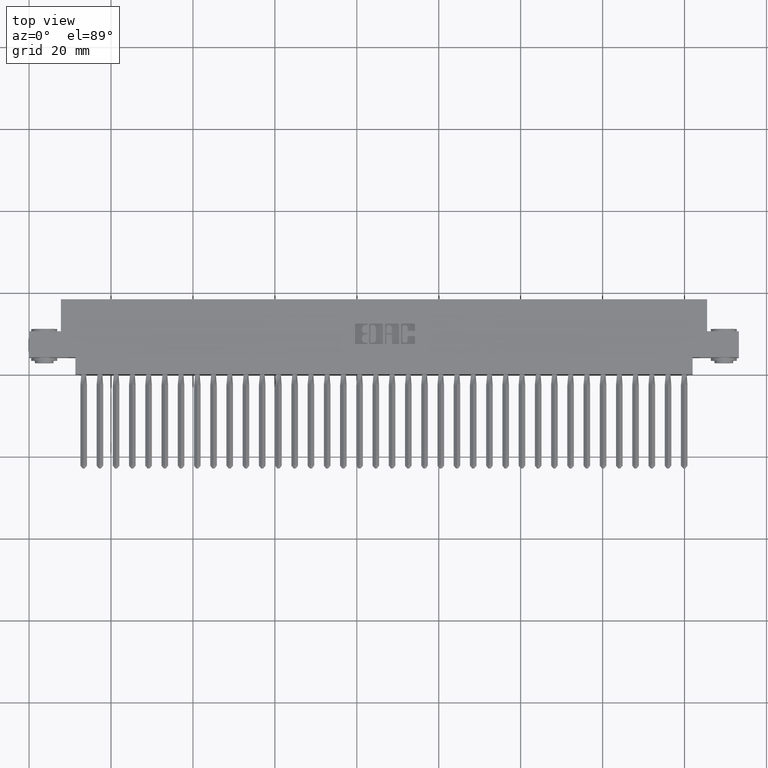
[diagram: clean part render]
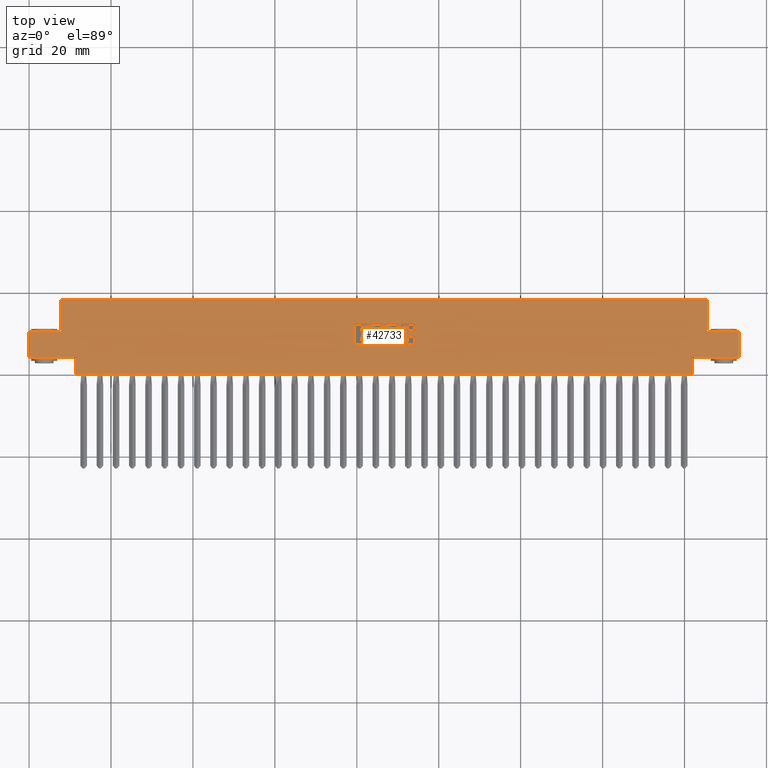
[diagram: same view with one face highlighted and labeled with its STEP entity id]
A machine part, top view. The second image highlights one B-rep face of the part: STEP entity #42733.
In plain terms, the highlighted planar face has unit normal (0, 0, -1).
Its self-contained STEP definition (entity closure, byte-faithful):
#108 = CARTESIAN_POINT ( 'NONE',  ( 0.0000000000000000000, 0.3918709691426839900, 0.0000000000000000000 ) ) ;
#151 = CARTESIAN_POINT ( 'NONE',  ( 0.3050000000000000500, 0.4129999999999999200, 0.0000000000000000000 ) ) ;
#179 = DIRECTION ( 'NONE',  ( -1.000000000000000000, -0.0000000000000000000, 9.653824462675984600E-015 ) ) ;
#205 = VECTOR ( 'NONE', #11000, 39.37007874015748100 ) ;
#277 = EDGE_CURVE ( 'NONE', #12188, #6458, #23362, .T. ) ;
#514 = CARTESIAN_POINT ( 'NONE',  ( -0.0000000000000000000, 0.3781290308573569400, 0.0000000000000000000 ) ) ;
#558 = ORIENTED_EDGE ( 'NONE', *, *, #43621, .T. ) ;
#575 = VECTOR ( 'NONE', #4192, 39.37007874015748100 ) ;
#577 = ORIENTED_EDGE ( 'NONE', *, *, #13629, .F. ) ;
#840 = VERTEX_POINT ( 'NONE', #48975 ) ;
#975 = ORIENTED_EDGE ( 'NONE', *, *, #43803, .T. ) ;
#1020 = CARTESIAN_POINT ( 'NONE',  ( 3.555044960240806100, 0.0000000000000000000, 0.0000000000000000000 ) ) ;
#1064 = VECTOR ( 'NONE', #5942, 39.37007874015748100 ) ;
#1189 = EDGE_CURVE ( 'NONE', #6458, #16159, #33452, .T. ) ;
#1422 = LINE ( 'NONE', #52358, #44791 ) ;
#1459 = ORIENTED_EDGE ( 'NONE', *, *, #15980, .F. ) ;
#1526 = DIRECTION ( 'NONE',  ( 1.000000000000000000, 0.0000000000000000000, 0.0000000000000000000 ) ) ;
#1657 = CARTESIAN_POINT ( 'NONE',  ( 2.731847993664263200E-016, 0.1630000000000000100, 3.951581205970576600E-015 ) ) ;
#1662 = EDGE_CURVE ( 'NONE', #28691, #37596, #54472, .T. ) ;
#1676 = EDGE_CURVE ( 'NONE', #19581, #40122, #10395, .T. ) ;
#1716 = CARTESIAN_POINT ( 'NONE',  ( -0.0000000000000000000, 0.2868432979619833200, 0.0000000000000000000 ) ) ;
#1942 = DIRECTION ( 'NONE',  ( -0.0000000000000000000, 0.0000000000000000000, 1.000000000000000000 ) ) ;
#1969 = CIRCLE ( 'NONE', #33940, 0.009815670203805798900 ) ;
#2193 = DIRECTION ( 'NONE',  ( -0.0000000000000000000, -1.000000000000000000, -0.0000000000000000000 ) ) ;
#2234 = VECTOR ( 'NONE', #42038, 39.37007874015748100 ) ;
#2276 = DIRECTION ( 'NONE',  ( 1.000000000000000000, 0.0000000000000000000, 0.0000000000000000000 ) ) ;
#2303 = ORIENTED_EDGE ( 'NONE', *, *, #3434, .T. ) ;
#2402 = CARTESIAN_POINT ( 'NONE',  ( 3.251004575677999500, 0.4762857328953863900, 0.0000000000000000000 ) ) ;
#2575 = LINE ( 'NONE', #4073, #50717 ) ;
#2872 = CARTESIAN_POINT ( 'NONE',  ( 6.821999999999999200, 0.1630000000000000100, 0.0000000000000000000 ) ) ;
#3030 = EDGE_CURVE ( 'NONE', #33369, #46322, #20392, .T. ) ;
#3061 = CARTESIAN_POINT ( 'NONE',  ( 3.426459680570987000, 0.2937142671046481000, 0.0000000000000000000 ) ) ;
#3110 = EDGE_CURVE ( 'NONE', #12875, #40179, #29182, .T. ) ;
#3130 = CARTESIAN_POINT ( 'NONE',  ( 3.199226915352927600, 0.3467188862052006900, 0.0000000000000000000 ) ) ;
#3199 = DIRECTION ( 'NONE',  ( 1.000000000000000000, 0.0000000000000000000, 0.0000000000000000000 ) ) ;
#3217 = CARTESIAN_POINT ( 'NONE',  ( 3.585964321382818300, 0.0000000000000000000, 0.0000000000000000000 ) ) ;
#3277 = CIRCLE ( 'NONE', #33894, 0.02625691779517995400 ) ;
#3434 = EDGE_CURVE ( 'NONE', #36346, #20296, #27128, .T. ) ;
#3475 = CIRCLE ( 'NONE', #9593, 0.009815670203841313900 ) ;
#3480 = CARTESIAN_POINT ( 'NONE',  ( 0.3050000000000000500, 0.4129999999999999200, 0.0000000000000000000 ) ) ;
#3498 = CARTESIAN_POINT ( 'NONE',  ( 3.199226915352927600, 0.3319953808994904900, 0.0000000000000000000 ) ) ;
#3530 = VECTOR ( 'NONE', #43928, 39.37007874015748100 ) ;
#3657 = AXIS2_PLACEMENT_3D ( 'NONE', #22508, #30832, #48677 ) ;
#3666 = CARTESIAN_POINT ( 'NONE',  ( 3.244133606535310100, 0.3918709691426839900, 0.0000000000000000000 ) ) ;
#3795 = LINE ( 'NONE', #49738, #50561 ) ;
#3833 = AXIS2_PLACEMENT_3D ( 'NONE', #15624, #41987, #46552 ) ;
#3944 = ORIENTED_EDGE ( 'NONE', *, *, #19993, .F. ) ;
#4004 = CARTESIAN_POINT ( 'NONE',  ( 3.429404381632127100, 0.4733410318342102200, 0.0000000000000000000 ) ) ;
#4014 = VECTOR ( 'NONE', #31353, 39.37007874015748100 ) ;
#4048 = VECTOR ( 'NONE', #37574, 39.37007874015748100 ) ;
#4073 = CARTESIAN_POINT ( 'NONE',  ( 0.0000000000000000000, 0.3663502266127576800, 0.0000000000000000000 ) ) ;
#4166 = LINE ( 'NONE', #52907, #53625 ) ;
#4192 = DIRECTION ( 'NONE',  ( 0.0000000000000000000, 1.000000000000000000, -0.0000000000000000000 ) ) ;
#4248 = VERTEX_POINT ( 'NONE', #5594 ) ;
#4336 = ORIENTED_EDGE ( 'NONE', *, *, #11096, .F. ) ;
#4615 = CARTESIAN_POINT ( 'NONE',  ( 3.555044960240806100, 0.4733410318342011200, 0.0000000000000000000 ) ) ;
#4689 = EDGE_CURVE ( 'NONE', #25783, #34005, #2575, .T. ) ;
#5058 = VECTOR ( 'NONE', #53649, 39.37007874015748100 ) ;
#5163 = DIRECTION ( 'NONE',  ( 0.0000000000000000000, -1.000000000000000000, 0.0000000000000000000 ) ) ;
#5398 = CARTESIAN_POINT ( 'NONE',  ( 0.0000000000000000000, 0.7199999999999999700, 0.0000000000000000000 ) ) ;
#5512 = CARTESIAN_POINT ( 'NONE',  ( 3.244133606415414000, 0.2868432979619858200, 0.0000000000000000000 ) ) ;
#5553 = VECTOR ( 'NONE', #41247, 39.37007874015748100 ) ;
#5562 = CARTESIAN_POINT ( 'NONE',  ( 0.0000000000000000000, 0.4129999999999999200, 0.0000000000000000000 ) ) ;
#5565 = CARTESIAN_POINT ( 'NONE',  ( 3.638478156973165700, 0.4237718973050453300, 0.0000000000000000000 ) ) ;
#5594 = CARTESIAN_POINT ( 'NONE',  ( 3.130026440416115100, 0.2966589681657900700, 0.0000000000000000000 ) ) ;
#5848 = ORIENTED_EDGE ( 'NONE', *, *, #41578, .T. ) ;
#5942 = DIRECTION ( 'NONE',  ( -1.000000000000000000, 0.0000000000000000000, 0.0000000000000000000 ) ) ;
#6013 = VERTEX_POINT ( 'NONE', #2872 ) ;
#6086 = ORIENTED_EDGE ( 'NONE', *, *, #27564, .T. ) ;
#6154 = LINE ( 'NONE', #46967, #33235 ) ;
#6195 = CARTESIAN_POINT ( 'NONE',  ( -0.0000000000000000000, 0.4831567020380067600, 0.0000000000000000000 ) ) ;
#6235 = CARTESIAN_POINT ( 'NONE',  ( 6.821999999999999200, 0.4129999999999999200, 0.0000000000000000000 ) ) ;
#6344 = VERTEX_POINT ( 'NONE', #36504 ) ;
#6458 = VERTEX_POINT ( 'NONE', #44096 ) ;
#6715 = EDGE_CURVE ( 'NONE', #55435, #40067, #41317, .T. ) ;
#6992 = DIRECTION ( 'NONE',  ( -0.0000000000000000000, 0.0000000000000000000, 1.000000000000000000 ) ) ;
#7020 = LINE ( 'NONE', #51556, #7672 ) ;
#7077 = LINE ( 'NONE', #20036, #5553 ) ;
#7155 = EDGE_CURVE ( 'NONE', #36346, #15708, #45992, .T. ) ;
#7237 = VERTEX_POINT ( 'NONE', #14486 ) ;
#7268 = DIRECTION ( 'NONE',  ( -0.0000000000000000000, 0.0000000000000000000, 1.000000000000000000 ) ) ;
#7480 = VERTEX_POINT ( 'NONE', #3498 ) ;
#7487 = ORIENTED_EDGE ( 'NONE', *, *, #12653, .T. ) ;
#7602 = CARTESIAN_POINT ( 'NONE',  ( 0.0000000000000000000, 0.7199999999999999700, 0.0000000000000000000 ) ) ;
#7672 = VECTOR ( 'NONE', #179, 39.37007874015748100 ) ;
#7788 = CIRCLE ( 'NONE', #3657, 0.03141014465217440600 ) ;
#7818 = DIRECTION ( 'NONE',  ( 0.0000000000000000000, -1.000000000000000000, 0.0000000000000000000 ) ) ;
#7973 = CARTESIAN_POINT ( 'NONE',  ( 3.707678631909940000, 0.0000000000000000000, 0.0000000000000000000 ) ) ;
#7974 = DIRECTION ( 'NONE',  ( 0.0000000000000000000, -1.000000000000000000, 0.0000000000000000000 ) ) ;
#8014 = EDGE_CURVE ( 'NONE', #7480, #20296, #41223, .T. ) ;
#8032 = VERTEX_POINT ( 'NONE', #34777 ) ;
#8127 = CARTESIAN_POINT ( 'NONE',  ( 3.638478156973178600, 0.3565345564089688100, 0.0000000000000000000 ) ) ;
#8148 = ORIENTED_EDGE ( 'NONE', *, *, #14602, .F. ) ;
#8188 = ORIENTED_EDGE ( 'NONE', *, *, #10582, .T. ) ;
#8196 = VERTEX_POINT ( 'NONE', #49537 ) ;
#8348 = CARTESIAN_POINT ( 'NONE',  ( 3.707678631909971900, 0.4237718973050387800, 0.0000000000000000000 ) ) ;
#8414 = ORIENTED_EDGE ( 'NONE', *, *, #11755, .F. ) ;
#8885 = AXIS2_PLACEMENT_3D ( 'NONE', #3061, #33313, #25007 ) ;
#9038 = CARTESIAN_POINT ( 'NONE',  ( 3.392595618367861400, 0.2966589681657900700, 0.0000000000000000000 ) ) ;
#9331 = EDGE_CURVE ( 'NONE', #12472, #14746, #10589, .T. ) ;
#9473 = VECTOR ( 'NONE', #55055, 39.37007874015748100 ) ;
#9545 = CARTESIAN_POINT ( 'NONE',  ( 3.485844485303984700, 0.3683133606535435900, 0.0000000000000000000 ) ) ;
#9550 = EDGE_CURVE ( 'NONE', #11167, #24426, #47193, .T. ) ;
#9593 = AXIS2_PLACEMENT_3D ( 'NONE', #40131, #49280, #31983 ) ;
#9736 = EDGE_CURVE ( 'NONE', #6013, #34550, #20682, .T. ) ;
#9762 = CIRCLE ( 'NONE', #23202, 0.006870969142663458500 ) ;
#9810 = CARTESIAN_POINT ( 'NONE',  ( 3.485844485303984700, 0.2966589681657879600, 0.0000000000000000000 ) ) ;
#9852 = CIRCLE ( 'NONE', #12818, 0.009815670203822736800 ) ;
#9903 = VERTEX_POINT ( 'NONE', #20514 ) ;
#9923 = DIRECTION ( 'NONE',  ( -0.0000000000000000000, 0.0000000000000000000, 1.000000000000000000 ) ) ;
#10321 = LINE ( 'NONE', #39567, #3530 ) ;
#10323 = PLANE ( 'NONE',  #41138 ) ;
#10395 = LINE ( 'NONE', #3217, #2234 ) ;
#10533 = VECTOR ( 'NONE', #13942, 39.37007874015748100 ) ;
#10582 = EDGE_CURVE ( 'NONE', #18574, #8196, #21945, .T. ) ;
#10589 = LINE ( 'NONE', #108, #34915 ) ;
#10638 = EDGE_CURVE ( 'NONE', #48418, #45050, #15807, .T. ) ;
#10742 = VERTEX_POINT ( 'NONE', #5562 ) ;
#11000 = DIRECTION ( 'NONE',  ( -1.000000000000000000, 0.0000000000000000000, 0.0000000000000000000 ) ) ;
#11046 = EDGE_LOOP ( 'NONE', ( #27467, #45071, #11759, #21946, #4336, #19964, #46695, #2303, #13673, #17597, #17140, #1459, #55169, #21086, #29577, #15011, #35858, #52177, #44291, #27755, #22480 ) ) ;
#11096 = EDGE_CURVE ( 'NONE', #31839, #12472, #12343, .T. ) ;
#11167 = VERTEX_POINT ( 'NONE', #21069 ) ;
#11236 = EDGE_CURVE ( 'NONE', #18958, #45138, #10321, .T. ) ;
#11360 = DIRECTION ( 'NONE',  ( 1.000000000000000000, 0.0000000000000000000, 0.0000000000000000000 ) ) ;
#11400 = ORIENTED_EDGE ( 'NONE', *, *, #43971, .T. ) ;
#11438 = EDGE_CURVE ( 'NONE', #13205, #53909, #3475, .T. ) ;
#11455 = DIRECTION ( 'NONE',  ( 0.0000000000000000000, 1.000000000000000000, -0.0000000000000000000 ) ) ;
#11755 = EDGE_CURVE ( 'NONE', #10742, #33498, #6154, .T. ) ;
#11759 = ORIENTED_EDGE ( 'NONE', *, *, #30212, .T. ) ;
#11768 = AXIS2_PLACEMENT_3D ( 'NONE', #55912, #42481, #43039 ) ;
#11796 = VECTOR ( 'NONE', #53131, 39.37007874015748100 ) ;
#11830 = ORIENTED_EDGE ( 'NONE', *, *, #45216, .F. ) ;
#11955 = CARTESIAN_POINT ( 'NONE',  ( 3.545229290037010400, 0.2966589681657809700, 0.0000000000000000000 ) ) ;
#12013 = CARTESIAN_POINT ( 'NONE',  ( 3.130026440416115100, 0.0000000000000000000, 0.0000000000000000000 ) ) ;
#12099 = VECTOR ( 'NONE', #50269, 39.37007874015748100 ) ;
#12110 = DIRECTION ( 'NONE',  ( -0.0000000000000000000, 0.0000000000000000000, 1.000000000000000000 ) ) ;
#12186 = ORIENTED_EDGE ( 'NONE', *, *, #14043, .T. ) ;
#12188 = VERTEX_POINT ( 'NONE', #25499 ) ;
#12274 = AXIS2_PLACEMENT_3D ( 'NONE', #39802, #9923, #26764 ) ;
#12311 = CARTESIAN_POINT ( 'NONE',  ( 3.244133606535335000, 0.2937142671046481000, 0.0000000000000000000 ) ) ;
#12343 = CIRCLE ( 'NONE', #11768, 0.006870969142663458500 ) ;
#12472 = VERTEX_POINT ( 'NONE', #3666 ) ;
#12485 = DIRECTION ( 'NONE',  ( 1.000000000000000000, 0.0000000000000000000, 0.0000000000000000000 ) ) ;
#12550 = EDGE_CURVE ( 'NONE', #8032, #840, #1422, .T. ) ;
#12610 = DIRECTION ( 'NONE',  ( 1.000000000000000000, 0.0000000000000000000, 0.0000000000000000000 ) ) ;
#12642 = LINE ( 'NONE', #25522, #32259 ) ;
#12648 = VERTEX_POINT ( 'NONE', #4615 ) ;
#12653 = EDGE_CURVE ( 'NONE', #51253, #37526, #4166, .T. ) ;
#12718 = AXIS2_PLACEMENT_3D ( 'NONE', #17010, #47551, #21391 ) ;
#12818 = AXIS2_PLACEMENT_3D ( 'NONE', #41283, #14575, #2276 ) ;
#12875 = VERTEX_POINT ( 'NONE', #39701 ) ;
#13067 = VERTEX_POINT ( 'NONE', #33408 ) ;
#13127 = ORIENTED_EDGE ( 'NONE', *, *, #49472, .F. ) ;
#13205 = VERTEX_POINT ( 'NONE', #27275 ) ;
#13245 = EDGE_CURVE ( 'NONE', #52861, #8032, #50868, .T. ) ;
#13300 = DIRECTION ( 'NONE',  ( 1.000000000000000000, 0.0000000000000000000, 0.0000000000000000000 ) ) ;
#13345 = ORIENTED_EDGE ( 'NONE', *, *, #48850, .F. ) ;
#13528 = EDGE_CURVE ( 'NONE', #4248, #17416, #1969, .T. ) ;
#13629 = EDGE_CURVE ( 'NONE', #14255, #48780, #33774, .T. ) ;
#13644 = CARTESIAN_POINT ( 'NONE',  ( 3.130026440416115100, 0.4733410318342102200, 0.0000000000000000000 ) ) ;
#13673 = ORIENTED_EDGE ( 'NONE', *, *, #8014, .F. ) ;
#13942 = DIRECTION ( 'NONE',  ( -0.0000000000000000000, -1.000000000000000000, -0.0000000000000000000 ) ) ;
#14043 = EDGE_CURVE ( 'NONE', #10742, #30320, #20168, .T. ) ;
#14164 = ORIENTED_EDGE ( 'NONE', *, *, #3030, .F. ) ;
#14165 = CARTESIAN_POINT ( 'NONE',  ( 3.392595618367896000, 0.4831567020380511700, 0.0000000000000000000 ) ) ;
#14185 = EDGE_CURVE ( 'NONE', #40067, #13067, #53416, .T. ) ;
#14255 = VERTEX_POINT ( 'NONE', #30197 ) ;
#14279 = AXIS2_PLACEMENT_3D ( 'NONE', #19024, #35850, #40216 ) ;
#14408 = LINE ( 'NONE', #54367, #55783 ) ;
#14420 = ORIENTED_EDGE ( 'NONE', *, *, #33738, .F. ) ;
#14463 = EDGE_CURVE ( 'NONE', #28691, #21958, #41144, .T. ) ;
#14486 = CARTESIAN_POINT ( 'NONE',  ( 0.3050000000000000500, 0.7199999999999999700, 0.0000000000000000000 ) ) ;
#14575 = DIRECTION ( 'NONE',  ( -0.0000000000000000000, 0.0000000000000000000, 1.000000000000000000 ) ) ;
#14602 = EDGE_CURVE ( 'NONE', #34005, #25751, #42524, .T. ) ;
#14619 = AXIS2_PLACEMENT_3D ( 'NONE', #12311, #21389, #21204 ) ;
#14686 = CARTESIAN_POINT ( 'NONE',  ( 3.139842110619917900, 0.2868432979619851000, 0.0000000000000000000 ) ) ;
#14744 = CARTESIAN_POINT ( 'NONE',  ( 0.0000000000000000000, 0.4831567020380328500, 0.0000000000000000000 ) ) ;
#14746 = VERTEX_POINT ( 'NONE', #46950 ) ;
#14919 = DIRECTION ( 'NONE',  ( 1.000000000000000000, 0.0000000000000000000, 0.0000000000000000000 ) ) ;
#15011 = ORIENTED_EDGE ( 'NONE', *, *, #20846, .F. ) ;
#15408 = ORIENTED_EDGE ( 'NONE', *, *, #35550, .F. ) ;
#15501 = ORIENTED_EDGE ( 'NONE', *, *, #9550, .T. ) ;
#15569 = EDGE_CURVE ( 'NONE', #18798, #40167, #47173, .T. ) ;
#15623 = ORIENTED_EDGE ( 'NONE', *, *, #1662, .T. ) ;
#15624 = CARTESIAN_POINT ( 'NONE',  ( 3.476028815100187700, 0.3683133606535529100, 0.0000000000000000000 ) ) ;
#15708 = VERTEX_POINT ( 'NONE', #34619 ) ;
#15726 = ORIENTED_EDGE ( 'NONE', *, *, #11438, .F. ) ;
#15807 = CIRCLE ( 'NONE', #14619, 0.006870969142662365600 ) ;
#15813 = FACE_BOUND ( 'NONE', #52804, .T. ) ;
#15858 = DIRECTION ( 'NONE',  ( 1.000000000000000000, 0.0000000000000000000, 0.0000000000000000000 ) ) ;
#15899 = ORIENTED_EDGE ( 'NONE', *, *, #9736, .F. ) ;
#15911 = EDGE_CURVE ( 'NONE', #34550, #6344, #53274, .T. ) ;
#15913 = CIRCLE ( 'NONE', #21063, 0.006870969142662365600 ) ;
#15951 = CIRCLE ( 'NONE', #17976, 0.009815670203805252500 ) ;
#15960 = CARTESIAN_POINT ( 'NONE',  ( 3.419588711428330500, 0.2937142671046481000, 0.0000000000000000000 ) ) ;
#15976 = DIRECTION ( 'NONE',  ( 1.000000000000000000, 0.0000000000000000000, 0.0000000000000000000 ) ) ;
#15980 = EDGE_CURVE ( 'NONE', #45050, #55184, #15913, .T. ) ;
#15992 = ORIENTED_EDGE ( 'NONE', *, *, #40721, .F. ) ;
#16047 = DIRECTION ( 'NONE',  ( -0.0000000000000000000, 0.0000000000000000000, 1.000000000000000000 ) ) ;
#16133 = DIRECTION ( 'NONE',  ( -0.0000000000000000000, -1.000000000000000000, -0.0000000000000000000 ) ) ;
#16159 = VERTEX_POINT ( 'NONE', #46741 ) ;
#16165 = EDGE_CURVE ( 'NONE', #35604, #14255, #3795, .T. ) ;
#16166 = DIRECTION ( 'NONE',  ( 1.000000000000000000, 0.0000000000000000000, 0.0000000000000000000 ) ) ;
#16202 = AXIS2_PLACEMENT_3D ( 'NONE', #48313, #39164, #30672 ) ;
#16490 = ORIENTED_EDGE ( 'NONE', *, *, #32263, .F. ) ;
#16622 = CARTESIAN_POINT ( 'NONE',  ( 3.697862961706156200, 0.3663502266127576800, 0.0000000000000000000 ) ) ;
#16804 = DIRECTION ( 'NONE',  ( -0.0000000000000000000, 0.0000000000000000000, 1.000000000000000000 ) ) ;
#16941 = CIRCLE ( 'NONE', #20987, 0.009815670203840767500 ) ;
#17010 = CARTESIAN_POINT ( 'NONE',  ( 3.244133606535351000, 0.4762857328953863900, 0.0000000000000000000 ) ) ;
#17098 = EDGE_CURVE ( 'NONE', #15708, #31839, #9762, .T. ) ;
#17105 = DIRECTION ( 'NONE',  ( -1.000000000000000000, 0.0000000000000000000, 0.0000000000000000000 ) ) ;
#17140 = ORIENTED_EDGE ( 'NONE', *, *, #37310, .F. ) ;
#17199 = VERTEX_POINT ( 'NONE', #51915 ) ;
#17410 = DIRECTION ( 'NONE',  ( 1.000000000000000000, 0.0000000000000000000, 0.0000000000000000000 ) ) ;
#17416 = VERTEX_POINT ( 'NONE', #14686 ) ;
#17484 = CARTESIAN_POINT ( 'NONE',  ( 3.276770709962975500, 0.2966589681657900700, 0.0000000000000000000 ) ) ;
#17597 = ORIENTED_EDGE ( 'NONE', *, *, #29901, .T. ) ;
#17726 = CARTESIAN_POINT ( 'NONE',  ( 3.276770709962975500, 0.2868432979619833200, 0.0000000000000000000 ) ) ;
#17976 = AXIS2_PLACEMENT_3D ( 'NONE', #44709, #37979, #47705 ) ;
#18067 = VECTOR ( 'NONE', #26201, 39.37007874015748100 ) ;
#18192 = VECTOR ( 'NONE', #54988, 39.37007874015748100 ) ;
#18300 = ORIENTED_EDGE ( 'NONE', *, *, #44408, .F. ) ;
#18574 = VERTEX_POINT ( 'NONE', #15960 ) ;
#18654 = ORIENTED_EDGE ( 'NONE', *, *, #35743, .F. ) ;
#18798 = VERTEX_POINT ( 'NONE', #44664 ) ;
#18823 = DIRECTION ( 'NONE',  ( -1.000000000000000000, 0.0000000000000000000, -0.0000000000000000000 ) ) ;
#18849 = CARTESIAN_POINT ( 'NONE',  ( 0.4450000000000002800, 0.1630000000000000100, -3.443706799202358000E-016 ) ) ;
#18941 = DIRECTION ( 'NONE',  ( -0.0000000000000000000, 0.0000000000000000000, 1.000000000000000000 ) ) ;
#18958 = VERTEX_POINT ( 'NONE', #22436 ) ;
#19024 = CARTESIAN_POINT ( 'NONE',  ( 3.495660155507787500, 0.2966589681657879600, 0.0000000000000000000 ) ) ;
#19581 = VERTEX_POINT ( 'NONE', #50979 ) ;
#19739 = EDGE_CURVE ( 'NONE', #40179, #44108, #38112, .T. ) ;
#19897 = VECTOR ( 'NONE', #29140, 39.37007874015748100 ) ;
#19907 = CARTESIAN_POINT ( 'NONE',  ( 3.266955039759168700, 0.0000000000000000000, 0.0000000000000000000 ) ) ;
#19933 = ORIENTED_EDGE ( 'NONE', *, *, #49087, .F. ) ;
#19964 = ORIENTED_EDGE ( 'NONE', *, *, #17098, .F. ) ;
#19993 = EDGE_CURVE ( 'NONE', #51137, #25783, #39419, .T. ) ;
#20036 = CARTESIAN_POINT ( 'NONE',  ( 6.821999999999999200, 0.7199999999999999700, 0.0000000000000000000 ) ) ;
#20168 = LINE ( 'NONE', #28319, #22889 ) ;
#20171 = DIRECTION ( 'NONE',  ( -0.0000000000000000000, 0.0000000000000000000, 1.000000000000000000 ) ) ;
#20235 = DIRECTION ( 'NONE',  ( 1.000000000000000000, 0.0000000000000000000, 0.0000000000000000000 ) ) ;
#20294 = DIRECTION ( 'NONE',  ( 1.000000000000000000, 0.0000000000000000000, 0.0000000000000000000 ) ) ;
#20296 = VERTEX_POINT ( 'NONE', #3130 ) ;
#20392 = CIRCLE ( 'NONE', #12274, 0.009815670203811809700 ) ;
#20514 = CARTESIAN_POINT ( 'NONE',  ( 3.402411288571669100, 0.2966589681657900700, 0.0000000000000000000 ) ) ;
#20682 = LINE ( 'NONE', #44959, #1064 ) ;
#20758 = ORIENTED_EDGE ( 'NONE', *, *, #39391, .F. ) ;
#20846 = EDGE_CURVE ( 'NONE', #50481, #4248, #40038, .T. ) ;
#20877 = LINE ( 'NONE', #7973, #53451 ) ;
#20987 = AXIS2_PLACEMENT_3D ( 'NONE', #25737, #37828, #38200 ) ;
#21063 = AXIS2_PLACEMENT_3D ( 'NONE', #33561, #7268, #42122 ) ;
#21069 = CARTESIAN_POINT ( 'NONE',  ( 0.4450000000000002800, 0.1630000000000000100, -3.443706799202358000E-016 ) ) ;
#21086 = ORIENTED_EDGE ( 'NONE', *, *, #29945, .F. ) ;
#21204 = DIRECTION ( 'NONE',  ( 1.000000000000000000, 0.0000000000000000000, 0.0000000000000000000 ) ) ;
#21301 = FACE_BOUND ( 'NONE', #25514, .T. ) ;
#21389 = DIRECTION ( 'NONE',  ( -0.0000000000000000000, 0.0000000000000000000, 1.000000000000000000 ) ) ;
#21391 = DIRECTION ( 'NONE',  ( 1.000000000000000000, 0.0000000000000000000, 0.0000000000000000000 ) ) ;
#21396 = CARTESIAN_POINT ( 'NONE',  ( 3.443146319917449500, 0.3781290308573487800, 0.0000000000000000000 ) ) ;
#21793 = AXIS2_PLACEMENT_3D ( 'NONE', #17484, #47279, #12610 ) ;
#21902 = DIRECTION ( 'NONE',  ( 1.000000000000000000, 0.0000000000000000000, 0.0000000000000000000 ) ) ;
#21945 = LINE ( 'NONE', #42785, #39514 ) ;
#21946 = ORIENTED_EDGE ( 'NONE', *, *, #9331, .F. ) ;
#21958 = VERTEX_POINT ( 'NONE', #26379 ) ;
#22027 = CIRCLE ( 'NONE', #14279, 0.009815670203803066700 ) ;
#22167 = VECTOR ( 'NONE', #47885, 39.37007874015748100 ) ;
#22236 = CIRCLE ( 'NONE', #37964, 0.009815670203803066700 ) ;
#22255 = EDGE_CURVE ( 'NONE', #33699, #55435, #23584, .T. ) ;
#22436 = CARTESIAN_POINT ( 'NONE',  ( 3.199226915352909400, 0.4232811137948585000, 0.0000000000000000000 ) ) ;
#22480 = ORIENTED_EDGE ( 'NONE', *, *, #36010, .F. ) ;
#22508 = CARTESIAN_POINT ( 'NONE',  ( 3.230637060005083800, 0.4232811137948585000, 0.0000000000000000000 ) ) ;
#22624 = EDGE_LOOP ( 'NONE', ( #37418, #15501, #38595, #35091, #15899, #33611, #29326, #15623, #45103, #24625, #8414, #12186 ) ) ;
#22668 = CARTESIAN_POINT ( 'NONE',  ( 3.585964321382818300, 0.4431578459575297200, 0.0000000000000000000 ) ) ;
#22791 = CARTESIAN_POINT ( 'NONE',  ( 3.402411288571669100, 0.0000000000000000000, 0.0000000000000000000 ) ) ;
#22805 = CARTESIAN_POINT ( 'NONE',  ( -2.066260317444781000E-015, 0.2868432979619625100, 0.0000000000000000000 ) ) ;
#22889 = VECTOR ( 'NONE', #2193, 39.37007874015748100 ) ;
#22927 = LINE ( 'NONE', #7602, #54087 ) ;
#23202 = AXIS2_PLACEMENT_3D ( 'NONE', #45437, #50217, #14919 ) ;
#23362 = LINE ( 'NONE', #1716, #5058 ) ;
#23429 = EDGE_CURVE ( 'NONE', #26013, #32298, #12642, .T. ) ;
#23584 = LINE ( 'NONE', #19907, #12099 ) ;
#23683 = LINE ( 'NONE', #28879, #4048 ) ;
#24148 = ORIENTED_EDGE ( 'NONE', *, *, #55105, .F. ) ;
#24168 = VECTOR ( 'NONE', #45246, 39.37007874015748100 ) ;
#24273 = EDGE_LOOP ( 'NONE', ( #52780, #14420, #558, #24148, #11400, #31549, #43194, #30761, #7487, #6086, #26548, #18300, #8188, #54979 ) ) ;
#24326 = LINE ( 'NONE', #46935, #9473 ) ;
#24413 = VECTOR ( 'NONE', #45839, 39.37007874015748100 ) ;
#24426 = VERTEX_POINT ( 'NONE', #32983 ) ;
#24538 = DIRECTION ( 'NONE',  ( 1.000000000000000000, 0.0000000000000000000, 0.0000000000000000000 ) ) ;
#24582 = CARTESIAN_POINT ( 'NONE',  ( 6.516999999999999500, 0.4129999999999999200, -7.794264553173328800E-016 ) ) ;
#24625 = ORIENTED_EDGE ( 'NONE', *, *, #50946, .F. ) ;
#24833 = DIRECTION ( 'NONE',  ( -0.0000000000000000000, 0.0000000000000000000, 1.000000000000000000 ) ) ;
#24902 = ORIENTED_EDGE ( 'NONE', *, *, #22255, .F. ) ;
#25007 = DIRECTION ( 'NONE',  ( 1.000000000000000000, 0.0000000000000000000, 0.0000000000000000000 ) ) ;
#25017 = DIRECTION ( 'NONE',  ( 1.000000000000000000, 0.0000000000000000000, 0.0000000000000000000 ) ) ;
#25055 = AXIS2_PLACEMENT_3D ( 'NONE', #46779, #16047, #15858 ) ;
#25251 = CIRCLE ( 'NONE', #25055, 0.009815670203806891800 ) ;
#25499 = CARTESIAN_POINT ( 'NONE',  ( 3.582038053301265000, 0.2868432979619833200, 0.0000000000000000000 ) ) ;
#25514 = EDGE_LOOP ( 'NONE', ( #11830, #18654, #14164, #30495, #5848, #51782, #975, #13127, #8148, #30775, #3944, #15408, #48126, #38175, #46740, #32900, #39538, #19933, #577, #42365 ) ) ;
#25522 = CARTESIAN_POINT ( 'NONE',  ( 3.485844485303984700, 0.0000000000000000000, 0.0000000000000000000 ) ) ;
#25684 = DIRECTION ( 'NONE',  ( 1.000000000000000000, 0.0000000000000000000, 0.0000000000000000000 ) ) ;
#25737 = CARTESIAN_POINT ( 'NONE',  ( 3.276770709963009700, 0.4733410318342102200, 0.0000000000000000000 ) ) ;
#25751 = VERTEX_POINT ( 'NONE', #8127 ) ;
#25783 = VERTEX_POINT ( 'NONE', #16622 ) ;
#25823 = CARTESIAN_POINT ( 'NONE',  ( 3.612221239177998200, 0.3268421540424530900, 0.0000000000000000000 ) ) ;
#25980 = CARTESIAN_POINT ( 'NONE',  ( 3.697862961706133600, 0.2966589681657900700, 0.0000000000000000000 ) ) ;
#26001 = DIRECTION ( 'NONE',  ( -0.0000000000000000000, 0.0000000000000000000, 1.000000000000000000 ) ) ;
#26013 = VERTEX_POINT ( 'NONE', #9810 ) ;
#26075 = DIRECTION ( 'NONE',  ( -0.0000000000000000000, 0.0000000000000000000, 1.000000000000000000 ) ) ;
#26201 = DIRECTION ( 'NONE',  ( 1.000000000000000000, 0.0000000000000000000, 0.0000000000000000000 ) ) ;
#26379 = CARTESIAN_POINT ( 'NONE',  ( 6.821999999999999200, 0.4129999999999999200, 0.0000000000000000000 ) ) ;
#26521 = AXIS2_PLACEMENT_3D ( 'NONE', #11955, #54744, #55293 ) ;
#26548 = ORIENTED_EDGE ( 'NONE', *, *, #15569, .T. ) ;
#26764 = DIRECTION ( 'NONE',  ( 1.000000000000000000, 0.0000000000000000000, 0.0000000000000000000 ) ) ;
#27128 = CIRCLE ( 'NONE', #16202, 0.03141014465215583000 ) ;
#27246 = LINE ( 'NONE', #6195, #32003 ) ;
#27275 = CARTESIAN_POINT ( 'NONE',  ( 3.402411288571669100, 0.4733410318342102200, 0.0000000000000000000 ) ) ;
#27416 = VERTEX_POINT ( 'NONE', #47108 ) ;
#27428 = AXIS2_PLACEMENT_3D ( 'NONE', #38560, #51525, #12485 ) ;
#27467 = ORIENTED_EDGE ( 'NONE', *, *, #41779, .T. ) ;
#27494 = DIRECTION ( 'NONE',  ( -1.000000000000000000, -3.530861605407645300E-014, 0.0000000000000000000 ) ) ;
#27564 = EDGE_CURVE ( 'NONE', #37526, #18798, #22236, .T. ) ;
#27602 = CARTESIAN_POINT ( 'NONE',  ( 3.495660155507785300, 0.2868432979619847700, 0.0000000000000000000 ) ) ;
#27755 = ORIENTED_EDGE ( 'NONE', *, *, #3110, .F. ) ;
#27879 = CARTESIAN_POINT ( 'NONE',  ( 3.244133606535351000, 0.4762857328953863900, 0.0000000000000000000 ) ) ;
#28090 = VERTEX_POINT ( 'NONE', #49267 ) ;
#28319 = CARTESIAN_POINT ( 'NONE',  ( 0.0000000000000000000, 0.7199999999999999700, 0.0000000000000000000 ) ) ;
#28321 = VERTEX_POINT ( 'NONE', #29674 ) ;
#28338 = CIRCLE ( 'NONE', #29103, 0.009815670203806891800 ) ;
#28358 = VECTOR ( 'NONE', #48552, 39.37007874015748100 ) ;
#28652 = LINE ( 'NONE', #22791, #11796 ) ;
#28691 = VERTEX_POINT ( 'NONE', #29668 ) ;
#28879 = CARTESIAN_POINT ( 'NONE',  ( 3.638478156973178600, 0.0000000000000000000, 0.0000000000000000000 ) ) ;
#29103 = AXIS2_PLACEMENT_3D ( 'NONE', #9038, #16804, #38562 ) ;
#29140 = DIRECTION ( 'NONE',  ( -0.0000000000000000000, 1.000000000000000000, -0.0000000000000000000 ) ) ;
#29182 = CIRCLE ( 'NONE', #48950, 0.006870969142648706400 ) ;
#29254 = CARTESIAN_POINT ( 'NONE',  ( -0.0000000000000000000, 0.2868432979619833200, 0.0000000000000000000 ) ) ;
#29326 = ORIENTED_EDGE ( 'NONE', *, *, #14463, .F. ) ;
#29553 = CARTESIAN_POINT ( 'NONE',  ( 3.433330649713646700, 0.0000000000000000000, 0.0000000000000000000 ) ) ;
#29577 = ORIENTED_EDGE ( 'NONE', *, *, #13528, .F. ) ;
#29668 = CARTESIAN_POINT ( 'NONE',  ( 6.516999999999999500, 0.4129999999999999200, -7.794264553173328800E-016 ) ) ;
#29674 = CARTESIAN_POINT ( 'NONE',  ( 3.429404381632127100, 0.4831567020380067600, 0.0000000000000000000 ) ) ;
#29901 = EDGE_CURVE ( 'NONE', #7480, #17199, #49854, .T. ) ;
#29945 = EDGE_CURVE ( 'NONE', #17416, #48418, #32805, .T. ) ;
#30197 = CARTESIAN_POINT ( 'NONE',  ( 3.707678631909971900, 0.4733410318341949600, 0.0000000000000000000 ) ) ;
#30212 = EDGE_CURVE ( 'NONE', #18958, #14746, #7788, .T. ) ;
#30280 = CARTESIAN_POINT ( 'NONE',  ( 3.244133606415414000, 0.3005852362473103200, 0.0000000000000000000 ) ) ;
#30320 = VERTEX_POINT ( 'NONE', #1657 ) ;
#30466 = CARTESIAN_POINT ( 'NONE',  ( -0.0000000000000000000, 0.4694147637527358300, 0.0000000000000000000 ) ) ;
#30495 = ORIENTED_EDGE ( 'NONE', *, *, #55677, .F. ) ;
#30501 = DIRECTION ( 'NONE',  ( -0.0000000000000000000, 0.0000000000000000000, 1.000000000000000000 ) ) ;
#30672 = DIRECTION ( 'NONE',  ( 1.000000000000000000, 0.0000000000000000000, 0.0000000000000000000 ) ) ;
#30761 = ORIENTED_EDGE ( 'NONE', *, *, #44134, .T. ) ;
#30775 = ORIENTED_EDGE ( 'NONE', *, *, #4689, .F. ) ;
#30832 = DIRECTION ( 'NONE',  ( -0.0000000000000000000, 0.0000000000000000000, 1.000000000000000000 ) ) ;
#31174 = AXIS2_PLACEMENT_3D ( 'NONE', #39257, #42918, #25684 ) ;
#31353 = DIRECTION ( 'NONE',  ( 1.000000000000000000, 0.0000000000000000000, 0.0000000000000000000 ) ) ;
#31545 = CARTESIAN_POINT ( 'NONE',  ( 3.707678631909940000, 0.3565345564089705800, 0.0000000000000000000 ) ) ;
#31549 = ORIENTED_EDGE ( 'NONE', *, *, #52724, .F. ) ;
#31637 = CARTESIAN_POINT ( 'NONE',  ( 3.244133606535351000, 0.4831567020380328500, 0.0000000000000000000 ) ) ;
#31691 = DIRECTION ( 'NONE',  ( 0.0000000000000000000, 0.0000000000000000000, -1.000000000000000000 ) ) ;
#31839 = VERTEX_POINT ( 'NONE', #45312 ) ;
#31983 = DIRECTION ( 'NONE',  ( 1.000000000000000000, 0.0000000000000000000, 0.0000000000000000000 ) ) ;
#32003 = VECTOR ( 'NONE', #45587, 39.37007874015748100 ) ;
#32123 = CARTESIAN_POINT ( 'NONE',  ( 3.582038053301299200, 0.4733410318342102200, 0.0000000000000000000 ) ) ;
#32207 = DIRECTION ( 'NONE',  ( 1.000000000000000000, 0.0000000000000000000, 0.0000000000000000000 ) ) ;
#32232 = CIRCLE ( 'NONE', #49160, 0.03141014465221592800 ) ;
#32259 = VECTOR ( 'NONE', #46943, 39.37007874015748100 ) ;
#32263 = EDGE_CURVE ( 'NONE', #9903, #13205, #28652, .T. ) ;
#32298 = VERTEX_POINT ( 'NONE', #9545 ) ;
#32416 = LINE ( 'NONE', #1020, #18192 ) ;
#32487 = CARTESIAN_POINT ( 'NONE',  ( 3.433330649713646700, 0.2937142671046481000, 0.0000000000000000000 ) ) ;
#32517 = VECTOR ( 'NONE', #35325, 39.37007874015748100 ) ;
#32549 = LINE ( 'NONE', #50244, #24413 ) ;
#32632 = CARTESIAN_POINT ( 'NONE',  ( 3.476028815100187700, 0.3781290308573499500, 0.0000000000000000000 ) ) ;
#32666 = CARTESIAN_POINT ( 'NONE',  ( 3.199226915352909400, 0.4380046191005199100, 0.0000000000000000000 ) ) ;
#32767 = CARTESIAN_POINT ( 'NONE',  ( 6.516999999999999500, 0.7199999999999999700, -7.794264553173328800E-016 ) ) ;
#32805 = LINE ( 'NONE', #22805, #45736 ) ;
#32900 = ORIENTED_EDGE ( 'NONE', *, *, #12550, .F. ) ;
#32983 = CARTESIAN_POINT ( 'NONE',  ( 0.4450000000000002800, 0.0000000000000000000, -3.443706799202358000E-016 ) ) ;
#33072 = CARTESIAN_POINT ( 'NONE',  ( 3.648293827176966300, 0.3565345564089696900, 0.0000000000000000000 ) ) ;
#33235 = VECTOR ( 'NONE', #20235, 39.37007874015748100 ) ;
#33285 = CARTESIAN_POINT ( 'NONE',  ( 3.697862961706166500, 0.4139562271012335900, 0.0000000000000000000 ) ) ;
#33313 = DIRECTION ( 'NONE',  ( -0.0000000000000000000, 0.0000000000000000000, 1.000000000000000000 ) ) ;
#33369 = VERTEX_POINT ( 'NONE', #5565 ) ;
#33408 = CARTESIAN_POINT ( 'NONE',  ( 3.392595618367861400, 0.2868432979619833200, 0.0000000000000000000 ) ) ;
#33452 = CIRCLE ( 'NONE', #45935, 0.009815670203806345400 ) ;
#33498 = VERTEX_POINT ( 'NONE', #3480 ) ;
#33561 = CARTESIAN_POINT ( 'NONE',  ( 3.244133606535335000, 0.2937142671046481000, 0.0000000000000000000 ) ) ;
#33611 = ORIENTED_EDGE ( 'NONE', *, *, #55508, .F. ) ;
#33656 = LINE ( 'NONE', #151, #22167 ) ;
#33699 = VERTEX_POINT ( 'NONE', #46531 ) ;
#33713 = LINE ( 'NONE', #47814, #28358 ) ;
#33738 = EDGE_CURVE ( 'NONE', #12648, #38163, #49520, .T. ) ;
#33774 = CIRCLE ( 'NONE', #27428, 0.009815670203840221000 ) ;
#33894 = AXIS2_PLACEMENT_3D ( 'NONE', #25823, #26001, #51809 ) ;
#33940 = AXIS2_PLACEMENT_3D ( 'NONE', #46393, #6992, #11360 ) ;
#33958 = CARTESIAN_POINT ( 'NONE',  ( 3.545229290037013500, 0.4831567020380067600, 0.0000000000000000000 ) ) ;
#33963 = VERTEX_POINT ( 'NONE', #43747 ) ;
#34005 = VERTEX_POINT ( 'NONE', #34642 ) ;
#34141 = FACE_OUTER_BOUND ( 'NONE', #22624, .T. ) ;
#34258 = DIRECTION ( 'NONE',  ( 1.000000000000000000, 0.0000000000000000000, 0.0000000000000000000 ) ) ;
#34323 = CIRCLE ( 'NONE', #39365, 0.009815670203796511200 ) ;
#34417 = CARTESIAN_POINT ( 'NONE',  ( 3.648293827176977400, 0.4139562271012337500, 0.0000000000000000000 ) ) ;
#34550 = VERTEX_POINT ( 'NONE', #40007 ) ;
#34619 = CARTESIAN_POINT ( 'NONE',  ( 3.244133606415388300, 0.3781290308573569400, 0.0000000000000000000 ) ) ;
#34642 = CARTESIAN_POINT ( 'NONE',  ( 3.648293827176966300, 0.3663502266127576800, 0.0000000000000000000 ) ) ;
#34777 = CARTESIAN_POINT ( 'NONE',  ( 3.572222383097457800, 0.4733410318342102200, 0.0000000000000000000 ) ) ;
#34915 = VECTOR ( 'NONE', #43612, 39.37007874015748100 ) ;
#35091 = ORIENTED_EDGE ( 'NONE', *, *, #15911, .F. ) ;
#35161 = VERTEX_POINT ( 'NONE', #40691 ) ;
#35325 = DIRECTION ( 'NONE',  ( -1.000000000000000000, 0.0000000000000000000, 0.0000000000000000000 ) ) ;
#35550 = EDGE_CURVE ( 'NONE', #16159, #51137, #20877, .T. ) ;
#35557 = EDGE_CURVE ( 'NONE', #7237, #37596, #22927, .T. ) ;
#35568 = VECTOR ( 'NONE', #7974, 39.37007874015748100 ) ;
#35604 = VERTEX_POINT ( 'NONE', #8348 ) ;
#35706 = CARTESIAN_POINT ( 'NONE',  ( 0.0000000000000000000, 0.4831567020380511700, 0.0000000000000000000 ) ) ;
#35743 = EDGE_CURVE ( 'NONE', #46322, #51735, #39139, .T. ) ;
#35850 = DIRECTION ( 'NONE',  ( -0.0000000000000000000, 0.0000000000000000000, 1.000000000000000000 ) ) ;
#35858 = ORIENTED_EDGE ( 'NONE', *, *, #51606, .F. ) ;
#36010 = EDGE_CURVE ( 'NONE', #42427, #12875, #36376, .T. ) ;
#36346 = VERTEX_POINT ( 'NONE', #45929 ) ;
#36376 = LINE ( 'NONE', #30466, #50036 ) ;
#36413 = EDGE_CURVE ( 'NONE', #24426, #6344, #41126, .T. ) ;
#36504 = CARTESIAN_POINT ( 'NONE',  ( 6.376999999999998900, 0.0000000000000000000, 0.0000000000000000000 ) ) ;
#36992 = CARTESIAN_POINT ( 'NONE',  ( 3.612221239177991500, 0.4431578459575297200, 0.0000000000000000000 ) ) ;
#37272 = AXIS2_PLACEMENT_3D ( 'NONE', #33072, #12110, #3199 ) ;
#37302 = CARTESIAN_POINT ( 'NONE',  ( 3.230637060005125100, 0.4380046191005199100, 0.0000000000000000000 ) ) ;
#37310 = EDGE_CURVE ( 'NONE', #55184, #17199, #14408, .T. ) ;
#37418 = ORIENTED_EDGE ( 'NONE', *, *, #46340, .F. ) ;
#37526 = VERTEX_POINT ( 'NONE', #21396 ) ;
#37574 = DIRECTION ( 'NONE',  ( 0.0000000000000000000, -1.000000000000000000, 0.0000000000000000000 ) ) ;
#37596 = VERTEX_POINT ( 'NONE', #32767 ) ;
#37751 = VERTEX_POINT ( 'NONE', #38752 ) ;
#37752 = CARTESIAN_POINT ( 'NONE',  ( 3.545229290037011300, 0.4733410318342105000, 0.0000000000000000000 ) ) ;
#37828 = DIRECTION ( 'NONE',  ( -0.0000000000000000000, 0.0000000000000000000, 1.000000000000000000 ) ) ;
#37964 = AXIS2_PLACEMENT_3D ( 'NONE', #53453, #18941, #1526 ) ;
#37979 = DIRECTION ( 'NONE',  ( -0.0000000000000000000, 0.0000000000000000000, 1.000000000000000000 ) ) ;
#38086 = LINE ( 'NONE', #14744, #205 ) ;
#38112 = CIRCLE ( 'NONE', #12718, 0.006870969142648706400 ) ;
#38163 = VERTEX_POINT ( 'NONE', #33958 ) ;
#38175 = ORIENTED_EDGE ( 'NONE', *, *, #277, .F. ) ;
#38200 = DIRECTION ( 'NONE',  ( 1.000000000000000000, 0.0000000000000000000, 0.0000000000000000000 ) ) ;
#38303 = EDGE_CURVE ( 'NONE', #44108, #33963, #38086, .T. ) ;
#38401 = EDGE_CURVE ( 'NONE', #840, #12188, #25251, .T. ) ;
#38525 = CARTESIAN_POINT ( 'NONE',  ( 3.555044960240806100, 0.2966589681657809700, 0.0000000000000000000 ) ) ;
#38560 = CARTESIAN_POINT ( 'NONE',  ( 3.697862961706131400, 0.4733410318342110600, 0.0000000000000000000 ) ) ;
#38562 = DIRECTION ( 'NONE',  ( 1.000000000000000000, 0.0000000000000000000, 0.0000000000000000000 ) ) ;
#38595 = ORIENTED_EDGE ( 'NONE', *, *, #36413, .T. ) ;
#38752 = CARTESIAN_POINT ( 'NONE',  ( 3.638478156973165700, 0.4431578454992600700, 0.0000000000000000000 ) ) ;
#39139 = LINE ( 'NONE', #50565, #43893 ) ;
#39164 = DIRECTION ( 'NONE',  ( -0.0000000000000000000, 0.0000000000000000000, 1.000000000000000000 ) ) ;
#39257 = CARTESIAN_POINT ( 'NONE',  ( 3.230637060005109100, 0.3319953808994904900, 0.0000000000000000000 ) ) ;
#39365 = AXIS2_PLACEMENT_3D ( 'NONE', #4004, #42452, #34258 ) ;
#39391 = EDGE_CURVE ( 'NONE', #53909, #35161, #32549, .T. ) ;
#39419 = CIRCLE ( 'NONE', #55916, 0.009815670203787221800 ) ;
#39514 = VECTOR ( 'NONE', #42611, 39.37007874015748100 ) ;
#39538 = ORIENTED_EDGE ( 'NONE', *, *, #13245, .F. ) ;
#39567 = CARTESIAN_POINT ( 'NONE',  ( 3.199226915352909400, 0.0000000000000000000, 0.0000000000000000000 ) ) ;
#39701 = CARTESIAN_POINT ( 'NONE',  ( 3.244133606535351000, 0.4694147637527358300, 0.0000000000000000000 ) ) ;
#39802 = CARTESIAN_POINT ( 'NONE',  ( 3.648293827176977400, 0.4237718973050453300, 0.0000000000000000000 ) ) ;
#40007 = CARTESIAN_POINT ( 'NONE',  ( 6.376999999999998900, 0.1630000000000000100, 0.0000000000000000000 ) ) ;
#40038 = LINE ( 'NONE', #12013, #48216 ) ;
#40067 = VERTEX_POINT ( 'NONE', #17726 ) ;
#40122 = VERTEX_POINT ( 'NONE', #22668 ) ;
#40131 = CARTESIAN_POINT ( 'NONE',  ( 3.392595618367827600, 0.4733410318342101100, 0.0000000000000000000 ) ) ;
#40167 = VERTEX_POINT ( 'NONE', #32487 ) ;
#40179 = VERTEX_POINT ( 'NONE', #2402 ) ;
#40216 = DIRECTION ( 'NONE',  ( 1.000000000000000000, 0.0000000000000000000, 0.0000000000000000000 ) ) ;
#40233 = FACE_BOUND ( 'NONE', #24273, .T. ) ;
#40691 = CARTESIAN_POINT ( 'NONE',  ( 3.276770709963009700, 0.4831567020380511700, 0.0000000000000000000 ) ) ;
#40721 = EDGE_CURVE ( 'NONE', #13067, #9903, #28338, .T. ) ;
#41115 = CIRCLE ( 'NONE', #52393, 0.02625691779517339700 ) ;
#41126 = LINE ( 'NONE', #48573, #18067 ) ;
#41138 = AXIS2_PLACEMENT_3D ( 'NONE', #5398, #31691, #18823 ) ;
#41144 = LINE ( 'NONE', #6235, #24168 ) ;
#41223 = LINE ( 'NONE', #51754, #575 ) ;
#41247 = DIRECTION ( 'NONE',  ( -0.0000000000000000000, -1.000000000000000000, -0.0000000000000000000 ) ) ;
#41283 = CARTESIAN_POINT ( 'NONE',  ( 3.139842110619937900, 0.4733410318342102200, 0.0000000000000000000 ) ) ;
#41317 = CIRCLE ( 'NONE', #21793, 0.009815670203806891800 ) ;
#41578 = EDGE_CURVE ( 'NONE', #37751, #40122, #41115, .T. ) ;
#41671 = DIRECTION ( 'NONE',  ( -1.000000000000000000, -1.189163988687022500E-013, 0.0000000000000000000 ) ) ;
#41779 = EDGE_CURVE ( 'NONE', #42427, #45138, #32232, .T. ) ;
#41820 = CARTESIAN_POINT ( 'NONE',  ( 3.266955039759168700, 0.2966589681657900700, 0.0000000000000000000 ) ) ;
#41987 = DIRECTION ( 'NONE',  ( -0.0000000000000000000, 0.0000000000000000000, 1.000000000000000000 ) ) ;
#42038 = DIRECTION ( 'NONE',  ( 0.0000000000000000000, 1.000000000000000000, -0.0000000000000000000 ) ) ;
#42122 = DIRECTION ( 'NONE',  ( 1.000000000000000000, 0.0000000000000000000, 0.0000000000000000000 ) ) ;
#42153 = DIRECTION ( 'NONE',  ( -0.0000000000000000000, 0.0000000000000000000, 1.000000000000000000 ) ) ;
#42365 = ORIENTED_EDGE ( 'NONE', *, *, #16165, .F. ) ;
#42427 = VERTEX_POINT ( 'NONE', #48973 ) ;
#42428 = VERTEX_POINT ( 'NONE', #38525 ) ;
#42452 = DIRECTION ( 'NONE',  ( -0.0000000000000000000, 0.0000000000000000000, 1.000000000000000000 ) ) ;
#42481 = DIRECTION ( 'NONE',  ( -0.0000000000000000000, 0.0000000000000000000, 1.000000000000000000 ) ) ;
#42524 = CIRCLE ( 'NONE', #37272, 0.009815670203787768200 ) ;
#42611 = DIRECTION ( 'NONE',  ( 0.0000000000000000000, 1.000000000000000000, -0.0000000000000000000 ) ) ;
#42733 = ADVANCED_FACE ( 'NONE', ( #21301, #49804, #34141, #15813, #40233 ), #10323, .F. ) ;
#42785 = CARTESIAN_POINT ( 'NONE',  ( 3.419588711428330500, 0.0000000000000000000, 0.0000000000000000000 ) ) ;
#42918 = DIRECTION ( 'NONE',  ( -0.0000000000000000000, 0.0000000000000000000, 1.000000000000000000 ) ) ;
#43039 = DIRECTION ( 'NONE',  ( 1.000000000000000000, 0.0000000000000000000, 0.0000000000000000000 ) ) ;
#43194 = ORIENTED_EDGE ( 'NONE', *, *, #23429, .T. ) ;
#43612 = DIRECTION ( 'NONE',  ( -1.000000000000000000, 0.0000000000000000000, 0.0000000000000000000 ) ) ;
#43621 = EDGE_CURVE ( 'NONE', #12648, #42428, #32416, .T. ) ;
#43747 = CARTESIAN_POINT ( 'NONE',  ( 3.139842110619937900, 0.4831567020380328500, 0.0000000000000000000 ) ) ;
#43803 = EDGE_CURVE ( 'NONE', #19581, #27416, #3277, .T. ) ;
#43893 = VECTOR ( 'NONE', #24538, 39.37007874015748100 ) ;
#43928 = DIRECTION ( 'NONE',  ( 0.0000000000000000000, 1.000000000000000000, -0.0000000000000000000 ) ) ;
#43971 = EDGE_CURVE ( 'NONE', #28090, #54111, #33713, .T. ) ;
#44045 = CIRCLE ( 'NONE', #26521, 0.009815670203795964800 ) ;
#44053 = LINE ( 'NONE', #35706, #32517 ) ;
#44096 = CARTESIAN_POINT ( 'NONE',  ( 3.697862961706133600, 0.2868432979619833200, 0.0000000000000000000 ) ) ;
#44108 = VERTEX_POINT ( 'NONE', #31637 ) ;
#44134 = EDGE_CURVE ( 'NONE', #32298, #51253, #55425, .T. ) ;
#44291 = ORIENTED_EDGE ( 'NONE', *, *, #19739, .F. ) ;
#44326 = ORIENTED_EDGE ( 'NONE', *, *, #14185, .F. ) ;
#44408 = EDGE_CURVE ( 'NONE', #18574, #40167, #50044, .T. ) ;
#44482 = EDGE_CURVE ( 'NONE', #28321, #8196, #34323, .T. ) ;
#44571 = VECTOR ( 'NONE', #45936, 39.37007874015748100 ) ;
#44664 = CARTESIAN_POINT ( 'NONE',  ( 3.433330649713646700, 0.3683133606535457000, 0.0000000000000000000 ) ) ;
#44709 = CARTESIAN_POINT ( 'NONE',  ( 3.697862961706166500, 0.4237718973050387800, 0.0000000000000000000 ) ) ;
#44791 = VECTOR ( 'NONE', #5163, 39.37007874015748100 ) ;
#44959 = CARTESIAN_POINT ( 'NONE',  ( 6.821999999999999200, 0.1630000000000000100, 0.0000000000000000000 ) ) ;
#45050 = VERTEX_POINT ( 'NONE', #53405 ) ;
#45071 = ORIENTED_EDGE ( 'NONE', *, *, #11236, .F. ) ;
#45103 = ORIENTED_EDGE ( 'NONE', *, *, #35557, .F. ) ;
#45138 = VERTEX_POINT ( 'NONE', #32666 ) ;
#45216 = EDGE_CURVE ( 'NONE', #51735, #35604, #15951, .T. ) ;
#45246 = DIRECTION ( 'NONE',  ( 1.000000000000000000, -0.0000000000000000000, 2.555496574810926600E-015 ) ) ;
#45312 = CARTESIAN_POINT ( 'NONE',  ( 3.251004575677973300, 0.3850000000000204900, 0.0000000000000000000 ) ) ;
#45437 = CARTESIAN_POINT ( 'NONE',  ( 3.244133606535310100, 0.3850000000000204900, 0.0000000000000000000 ) ) ;
#45526 = CARTESIAN_POINT ( 'NONE',  ( 3.582038053301299200, 0.4831567020380511700, 0.0000000000000000000 ) ) ;
#45587 = DIRECTION ( 'NONE',  ( 1.000000000000000000, 0.0000000000000000000, 0.0000000000000000000 ) ) ;
#45736 = VECTOR ( 'NONE', #47966, 39.37007874015748100 ) ;
#45839 = DIRECTION ( 'NONE',  ( -1.000000000000000000, 0.0000000000000000000, 0.0000000000000000000 ) ) ;
#45929 = CARTESIAN_POINT ( 'NONE',  ( 3.230637060005083800, 0.3781290308573569400, 0.0000000000000000000 ) ) ;
#45935 = AXIS2_PLACEMENT_3D ( 'NONE', #25980, #30501, #13300 ) ;
#45936 = DIRECTION ( 'NONE',  ( 1.000000000000000000, 0.0000000000000000000, 0.0000000000000000000 ) ) ;
#45992 = LINE ( 'NONE', #514, #4014 ) ;
#46322 = VERTEX_POINT ( 'NONE', #34417 ) ;
#46340 = EDGE_CURVE ( 'NONE', #11167, #30320, #7020, .T. ) ;
#46393 = CARTESIAN_POINT ( 'NONE',  ( 3.139842110619921900, 0.2966589681657900700, 0.0000000000000000000 ) ) ;
#46531 = CARTESIAN_POINT ( 'NONE',  ( 3.266955039759168700, 0.4733410318342102200, 0.0000000000000000000 ) ) ;
#46552 = DIRECTION ( 'NONE',  ( 1.000000000000000000, 0.0000000000000000000, 0.0000000000000000000 ) ) ;
#46567 = AXIS2_PLACEMENT_3D ( 'NONE', #37752, #42153, #16166 ) ;
#46695 = ORIENTED_EDGE ( 'NONE', *, *, #7155, .F. ) ;
#46740 = ORIENTED_EDGE ( 'NONE', *, *, #38401, .F. ) ;
#46741 = CARTESIAN_POINT ( 'NONE',  ( 3.707678631909940000, 0.2966589681657831300, 0.0000000000000000000 ) ) ;
#46779 = CARTESIAN_POINT ( 'NONE',  ( 3.582038053301265000, 0.2966589681657900700, 0.0000000000000000000 ) ) ;
#46935 = CARTESIAN_POINT ( 'NONE',  ( 3.638478156973165700, 0.0000000000000000000, 0.0000000000000000000 ) ) ;
#46943 = DIRECTION ( 'NONE',  ( 0.0000000000000000000, 1.000000000000000000, -0.0000000000000000000 ) ) ;
#46950 = CARTESIAN_POINT ( 'NONE',  ( 3.230637060005083800, 0.3918709691426839900, 0.0000000000000000000 ) ) ;
#46967 = CARTESIAN_POINT ( 'NONE',  ( 0.0000000000000000000, 0.4129999999999999200, 0.0000000000000000000 ) ) ;
#47108 = CARTESIAN_POINT ( 'NONE',  ( 3.638478156973178600, 0.3268421540424530900, 0.0000000000000000000 ) ) ;
#47173 = LINE ( 'NONE', #29553, #35568 ) ;
#47193 = LINE ( 'NONE', #18849, #10533 ) ;
#47279 = DIRECTION ( 'NONE',  ( -0.0000000000000000000, 0.0000000000000000000, 1.000000000000000000 ) ) ;
#47551 = DIRECTION ( 'NONE',  ( -0.0000000000000000000, 0.0000000000000000000, 1.000000000000000000 ) ) ;
#47705 = DIRECTION ( 'NONE',  ( 1.000000000000000000, 0.0000000000000000000, 0.0000000000000000000 ) ) ;
#47814 = CARTESIAN_POINT ( 'NONE',  ( 0.0000000000000000000, 0.2868432979619847700, 0.0000000000000000000 ) ) ;
#47885 = DIRECTION ( 'NONE',  ( -0.0000000000000000000, 1.000000000000000000, -0.0000000000000000000 ) ) ;
#47966 = DIRECTION ( 'NONE',  ( 1.000000000000000000, 7.203446383881635600E-015, 0.0000000000000000000 ) ) ;
#48126 = ORIENTED_EDGE ( 'NONE', *, *, #1189, .F. ) ;
#48216 = VECTOR ( 'NONE', #7818, 39.37007874015748100 ) ;
#48313 = CARTESIAN_POINT ( 'NONE',  ( 3.230637060005083800, 0.3467188862052006900, 0.0000000000000000000 ) ) ;
#48418 = VERTEX_POINT ( 'NONE', #5512 ) ;
#48552 = DIRECTION ( 'NONE',  ( -1.000000000000000000, 0.0000000000000000000, 0.0000000000000000000 ) ) ;
#48573 = CARTESIAN_POINT ( 'NONE',  ( 0.0000000000000000000, 0.0000000000000000000, 0.0000000000000000000 ) ) ;
#48677 = DIRECTION ( 'NONE',  ( 1.000000000000000000, 0.0000000000000000000, 0.0000000000000000000 ) ) ;
#48780 = VERTEX_POINT ( 'NONE', #54915 ) ;
#48850 = EDGE_CURVE ( 'NONE', #35161, #33699, #16941, .T. ) ;
#48950 = AXIS2_PLACEMENT_3D ( 'NONE', #27879, #1942, #32207 ) ;
#48973 = CARTESIAN_POINT ( 'NONE',  ( 3.230637060005125100, 0.4694147637527358300, 0.0000000000000000000 ) ) ;
#48975 = CARTESIAN_POINT ( 'NONE',  ( 3.572222383097457800, 0.2966589681657900700, 0.0000000000000000000 ) ) ;
#49087 = EDGE_CURVE ( 'NONE', #48780, #52861, #44053, .T. ) ;
#49160 = AXIS2_PLACEMENT_3D ( 'NONE', #37302, #24833, #20294 ) ;
#49267 = CARTESIAN_POINT ( 'NONE',  ( 3.545229290037010400, 0.2868432979619847700, 0.0000000000000000000 ) ) ;
#49280 = DIRECTION ( 'NONE',  ( -0.0000000000000000000, 0.0000000000000000000, 1.000000000000000000 ) ) ;
#49472 = EDGE_CURVE ( 'NONE', #25751, #27416, #23683, .T. ) ;
#49520 = CIRCLE ( 'NONE', #46567, 0.009815670203795418300 ) ;
#49537 = CARTESIAN_POINT ( 'NONE',  ( 3.419588711428330500, 0.4733410318342102200, 0.0000000000000000000 ) ) ;
#49738 = CARTESIAN_POINT ( 'NONE',  ( 3.707678631909971900, 0.0000000000000000000, 0.0000000000000000000 ) ) ;
#49804 = FACE_BOUND ( 'NONE', #11046, .T. ) ;
#49854 = CIRCLE ( 'NONE', #31174, 0.03141014465218151100 ) ;
#49980 = DIRECTION ( 'NONE',  ( -0.0000000000000000000, 0.0000000000000000000, 1.000000000000000000 ) ) ;
#50036 = VECTOR ( 'NONE', #17410, 39.37007874015748100 ) ;
#50044 = CIRCLE ( 'NONE', #8885, 0.006870969142657995000 ) ;
#50217 = DIRECTION ( 'NONE',  ( -0.0000000000000000000, 0.0000000000000000000, 1.000000000000000000 ) ) ;
#50244 = CARTESIAN_POINT ( 'NONE',  ( 0.0000000000000000000, 0.4831567020380511700, 0.0000000000000000000 ) ) ;
#50269 = DIRECTION ( 'NONE',  ( 0.0000000000000000000, -1.000000000000000000, 0.0000000000000000000 ) ) ;
#50481 = VERTEX_POINT ( 'NONE', #13644 ) ;
#50561 = VECTOR ( 'NONE', #11455, 39.37007874015748100 ) ;
#50565 = CARTESIAN_POINT ( 'NONE',  ( -0.0000000000000000000, 0.4139562271012337500, 0.0000000000000000000 ) ) ;
#50717 = VECTOR ( 'NONE', #17105, 39.37007874015748100 ) ;
#50868 = CIRCLE ( 'NONE', #54640, 0.009815670203841313900 ) ;
#50946 = EDGE_CURVE ( 'NONE', #33498, #7237, #33656, .T. ) ;
#50979 = CARTESIAN_POINT ( 'NONE',  ( 3.585964321382818300, 0.3268421540424530900, 0.0000000000000000000 ) ) ;
#51137 = VERTEX_POINT ( 'NONE', #31545 ) ;
#51253 = VERTEX_POINT ( 'NONE', #32632 ) ;
#51525 = DIRECTION ( 'NONE',  ( -0.0000000000000000000, 0.0000000000000000000, 1.000000000000000000 ) ) ;
#51556 = CARTESIAN_POINT ( 'NONE',  ( 2.731847993664263200E-016, 0.1630000000000000100, 3.951581205970576600E-015 ) ) ;
#51606 = EDGE_CURVE ( 'NONE', #33963, #50481, #9852, .T. ) ;
#51735 = VERTEX_POINT ( 'NONE', #33285 ) ;
#51754 = CARTESIAN_POINT ( 'NONE',  ( 3.199226915352927600, 0.0000000000000000000, 0.0000000000000000000 ) ) ;
#51782 = ORIENTED_EDGE ( 'NONE', *, *, #1676, .F. ) ;
#51809 = DIRECTION ( 'NONE',  ( 1.000000000000000000, 0.0000000000000000000, 0.0000000000000000000 ) ) ;
#51915 = CARTESIAN_POINT ( 'NONE',  ( 3.230637060005109100, 0.3005852362473087100, 0.0000000000000000000 ) ) ;
#52177 = ORIENTED_EDGE ( 'NONE', *, *, #38303, .F. ) ;
#52358 = CARTESIAN_POINT ( 'NONE',  ( 3.572222383097457800, 0.0000000000000000000, 0.0000000000000000000 ) ) ;
#52393 = AXIS2_PLACEMENT_3D ( 'NONE', #36992, #20171, #15976 ) ;
#52428 = CARTESIAN_POINT ( 'NONE',  ( 3.697862961706152700, 0.3565345564089705800, 0.0000000000000000000 ) ) ;
#52724 = EDGE_CURVE ( 'NONE', #26013, #54111, #22027, .T. ) ;
#52780 = ORIENTED_EDGE ( 'NONE', *, *, #54118, .T. ) ;
#52804 = EDGE_LOOP ( 'NONE', ( #15726, #16490, #15992, #44326, #53964, #24902, #13345, #20758 ) ) ;
#52861 = VERTEX_POINT ( 'NONE', #45526 ) ;
#52907 = CARTESIAN_POINT ( 'NONE',  ( -1.335121276943786300E-014, 0.3781290308572272100, 0.0000000000000000000 ) ) ;
#53131 = DIRECTION ( 'NONE',  ( 0.0000000000000000000, 1.000000000000000000, -0.0000000000000000000 ) ) ;
#53274 = LINE ( 'NONE', #55361, #55959 ) ;
#53405 = CARTESIAN_POINT ( 'NONE',  ( 3.251004575677997300, 0.2937142671046481000, 0.0000000000000000000 ) ) ;
#53416 = LINE ( 'NONE', #29254, #44571 ) ;
#53451 = VECTOR ( 'NONE', #55121, 39.37007874015748100 ) ;
#53453 = CARTESIAN_POINT ( 'NONE',  ( 3.443146319917449500, 0.3683133606535457000, 0.0000000000000000000 ) ) ;
#53625 = VECTOR ( 'NONE', #27494, 39.37007874015748100 ) ;
#53649 = DIRECTION ( 'NONE',  ( 1.000000000000000000, 0.0000000000000000000, 0.0000000000000000000 ) ) ;
#53909 = VERTEX_POINT ( 'NONE', #14165 ) ;
#53961 = DIRECTION ( 'NONE',  ( 1.000000000000000000, 0.0000000000000000000, 0.0000000000000000000 ) ) ;
#53964 = ORIENTED_EDGE ( 'NONE', *, *, #6715, .F. ) ;
#54087 = VECTOR ( 'NONE', #25017, 39.37007874015748100 ) ;
#54111 = VERTEX_POINT ( 'NONE', #27602 ) ;
#54118 = EDGE_CURVE ( 'NONE', #28321, #38163, #27246, .T. ) ;
#54367 = CARTESIAN_POINT ( 'NONE',  ( -3.574451384758238200E-014, 0.3005852362469245700, 0.0000000000000000000 ) ) ;
#54472 = LINE ( 'NONE', #24582, #19897 ) ;
#54640 = AXIS2_PLACEMENT_3D ( 'NONE', #32123, #49980, #53961 ) ;
#54744 = DIRECTION ( 'NONE',  ( -0.0000000000000000000, 0.0000000000000000000, 1.000000000000000000 ) ) ;
#54915 = CARTESIAN_POINT ( 'NONE',  ( 3.697862961706168200, 0.4831567020380511700, 0.0000000000000000000 ) ) ;
#54979 = ORIENTED_EDGE ( 'NONE', *, *, #44482, .F. ) ;
#54988 = DIRECTION ( 'NONE',  ( 0.0000000000000000000, -1.000000000000000000, 0.0000000000000000000 ) ) ;
#55055 = DIRECTION ( 'NONE',  ( 0.0000000000000000000, -1.000000000000000000, 0.0000000000000000000 ) ) ;
#55105 = EDGE_CURVE ( 'NONE', #28090, #42428, #44045, .T. ) ;
#55121 = DIRECTION ( 'NONE',  ( 0.0000000000000000000, 1.000000000000000000, -0.0000000000000000000 ) ) ;
#55169 = ORIENTED_EDGE ( 'NONE', *, *, #10638, .F. ) ;
#55184 = VERTEX_POINT ( 'NONE', #30280 ) ;
#55293 = DIRECTION ( 'NONE',  ( 1.000000000000000000, 0.0000000000000000000, 0.0000000000000000000 ) ) ;
#55361 = CARTESIAN_POINT ( 'NONE',  ( 6.376999999999998900, 0.1630000000000000100, 0.0000000000000000000 ) ) ;
#55425 = CIRCLE ( 'NONE', #3833, 0.009815670203797057700 ) ;
#55435 = VERTEX_POINT ( 'NONE', #41820 ) ;
#55508 = EDGE_CURVE ( 'NONE', #21958, #6013, #7077, .T. ) ;
#55677 = EDGE_CURVE ( 'NONE', #37751, #33369, #24326, .T. ) ;
#55783 = VECTOR ( 'NONE', #41671, 39.37007874015748100 ) ;
#55912 = CARTESIAN_POINT ( 'NONE',  ( 3.244133606535310100, 0.3850000000000204900, 0.0000000000000000000 ) ) ;
#55916 = AXIS2_PLACEMENT_3D ( 'NONE', #52428, #26075, #21902 ) ;
#55959 = VECTOR ( 'NONE', #16133, 39.37007874015748100 ) ;